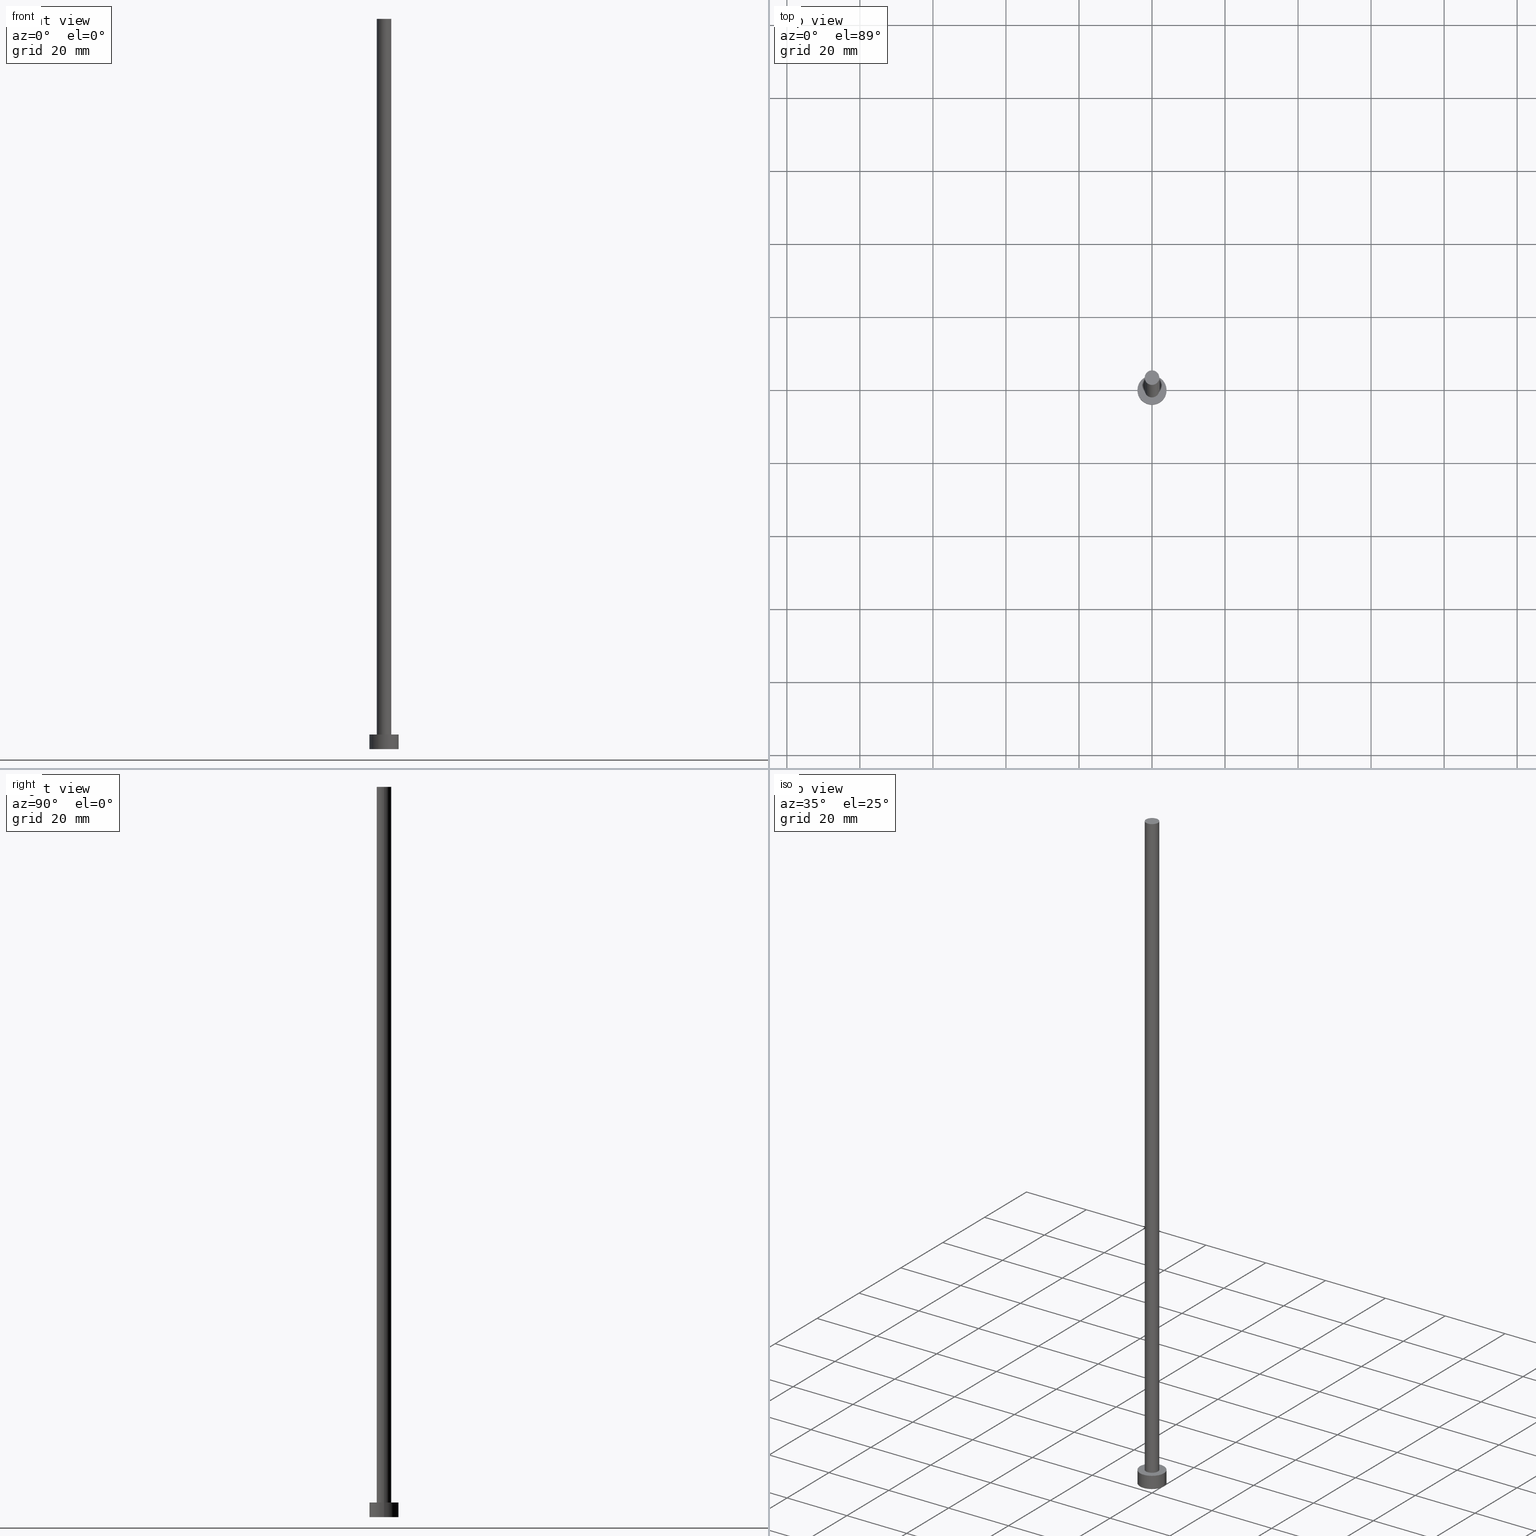
[diagram: canonical four-view strip — front | top / right | iso, engineering-drawing reading convention]
A machine part, canonical four-view strip (front | top / right | iso — engineering-drawing reading convention). The complete STEP part file that produces these views, byte-faithful:
ISO-10303-21;
HEADER;
FILE_DESCRIPTION (( 'STEP AP203' ),
    '1' );
FILE_NAME ('58db.STEP',
    '2023-02-13T16:37:05',
    ( '' ),
    ( '' ),
    'SwSTEP 2.0',
    'SolidWorks 2019',
    '' );
FILE_SCHEMA (( 'CONFIG_CONTROL_DESIGN' ));
ENDSEC;

DATA;
#1 = LOCAL_TIME ( 17, 37, 5.000000000000000000, #58 ) ;
#2 = ORIENTED_EDGE ( 'NONE', *, *, #134, .T. ) ;
#3 = DIRECTION ( 'NONE',  ( -1.000000000000000000, 0.000000000000000000, 0.000000000000000000 ) ) ;
#4 = ADVANCED_FACE ( 'NONE', ( #229 ), #156, .T. ) ;
#5 = AXIS2_PLACEMENT_3D ( 'NONE', #55, #9, #242 ) ;
#6 = DIRECTION ( 'NONE',  ( 1.000000000000000000, 0.000000000000000000, 0.000000000000000000 ) ) ;
#7 = DATE_TIME_ROLE ( 'classification_date' ) ;
#8 = CIRCLE ( 'NONE', #245, 4.000000000000000000 ) ;
#9 = DIRECTION ( 'NONE',  ( 0.000000000000000000, 0.000000000000000000, 1.000000000000000000 ) ) ;
#10 = DIRECTION ( 'NONE',  ( -0.000000000000000000, -0.000000000000000000, -1.000000000000000000 ) ) ;
#11 = ADVANCED_FACE ( 'NONE', ( #74 ), #157, .T. ) ;
#12 =( NAMED_UNIT ( * ) SI_UNIT ( $, .STERADIAN. ) SOLID_ANGLE_UNIT ( ) );
#13 = CARTESIAN_POINT ( 'NONE',  ( 4.000000000000000000, 4.898587196589412829E-16, 4.000000000000000000 ) ) ;
#14 = ADVANCED_FACE ( 'NONE', ( #101 ), #124, .T. ) ;
#15 = CARTESIAN_POINT ( 'NONE',  ( 0.000000000000000000, 0.000000000000000000, 4.000000000000000000 ) ) ;
#16 = CARTESIAN_POINT ( 'NONE',  ( 0.000000000000000000, 0.000000000000000000, 4.000000000000000000 ) ) ;
#17 = CARTESIAN_POINT ( 'NONE',  ( -2.000000000000000000, 0.000000000000000000, 200.0000000000000000 ) ) ;
#18 = PERSON_AND_ORGANIZATION_ROLE ( 'creator' ) ;
#19 = COORDINATED_UNIVERSAL_TIME_OFFSET ( 1, 0, .AHEAD. ) ;
#20 = ORIENTED_EDGE ( 'NONE', *, *, #38, .F. ) ;
#21 = AXIS2_PLACEMENT_3D ( 'NONE', #77, #163, #159 ) ;
#22 = EDGE_LOOP ( 'NONE', ( #72, #98, #238, #177 ) ) ;
#23 = CARTESIAN_POINT ( 'NONE',  ( 2.000000000000000000, 2.449293598294706414E-16, 4.000000000000000000 ) ) ;
#24 = AXIS2_PLACEMENT_3D ( 'NONE', #15, #100, #107 ) ;
#25 = COORDINATED_UNIVERSAL_TIME_OFFSET ( 1, 0, .AHEAD. ) ;
#26 = VECTOR ( 'NONE', #190, 1000.000000000000000 ) ;
#27 = DIRECTION ( 'NONE',  ( 0.000000000000000000, 0.000000000000000000, 1.000000000000000000 ) ) ;
#28 = CARTESIAN_POINT ( 'NONE',  ( 0.000000000000000000, 0.000000000000000000, 200.0000000000000000 ) ) ;
#29 = FACE_BOUND ( 'NONE', #138, .T. ) ;
#30 = PERSON_AND_ORGANIZATION ( #40, #83 ) ;
#31 = CARTESIAN_POINT ( 'NONE',  ( -4.000000000000000000, 0.000000000000000000, 4.000000000000000000 ) ) ;
#32 = CARTESIAN_POINT ( 'NONE',  ( 2.000000000000000000, 2.449293598294706414E-16, 200.0000000000000000 ) ) ;
#33 = EDGE_CURVE ( 'NONE', #179, #254, #69, .T. ) ;
#34 = ORIENTED_EDGE ( 'NONE', *, *, #180, .T. ) ;
#35 = VERTEX_POINT ( 'NONE', #122 ) ;
#36 = DIRECTION ( 'NONE',  ( -0.000000000000000000, -0.000000000000000000, -1.000000000000000000 ) ) ;
#37 = FACE_OUTER_BOUND ( 'NONE', #227, .T. ) ;
#38 = EDGE_CURVE ( 'NONE', #178, #35, #255, .T. ) ;
#39 = AXIS2_PLACEMENT_3D ( 'NONE', #62, #86, #165 ) ;
#40 = PERSON ( 'NEUR�EN�', 'NEUR�EN�', 'NEUR�EN�', ('NEUR�EN�'), ('NEUR�EN�'), ('NEUR�EN�') ) ;
#41 = MECHANICAL_CONTEXT ( 'NONE', #95, 'mechanical' ) ;
#42 = LINE ( 'NONE', #204, #161 ) ;
#43 = AXIS2_PLACEMENT_3D ( 'NONE', #28, #82, #135 ) ;
#44 = DIRECTION ( 'NONE',  ( 0.000000000000000000, 0.000000000000000000, 1.000000000000000000 ) ) ;
#45 = DATE_AND_TIME ( #225, #121 ) ;
#46 = CC_DESIGN_APPROVAL ( #182, ( #118 ) ) ;
#47 = PERSON_AND_ORGANIZATION ( #40, #83 ) ;
#48 = AXIS2_PLACEMENT_3D ( 'NONE', #231, #36, #3 ) ;
#49 = EDGE_CURVE ( 'NONE', #193, #211, #57, .T. ) ;
#50 = ORIENTED_EDGE ( 'NONE', *, *, #38, .T. ) ;
#51 = ORIENTED_EDGE ( 'NONE', *, *, #49, .F. ) ;
#52 = EDGE_CURVE ( 'NONE', #254, #179, #216, .T. ) ;
#53 = CARTESIAN_POINT ( 'NONE',  ( 0.000000000000000000, 0.000000000000000000, 4.000000000000000000 ) ) ;
#54 = PERSON_AND_ORGANIZATION ( #40, #83 ) ;
#55 = CARTESIAN_POINT ( 'NONE',  ( 0.000000000000000000, 0.000000000000000000, 200.0000000000000000 ) ) ;
#56 = CC_DESIGN_DATE_AND_TIME_ASSIGNMENT ( #170, #196, ( #175 ) ) ;
#57 = CIRCLE ( 'NONE', #21, 4.000000000000000000 ) ;
#58 = COORDINATED_UNIVERSAL_TIME_OFFSET ( 1, 0, .AHEAD. ) ;
#59 = LOCAL_TIME ( 17, 37, 5.000000000000000000, #19 ) ;
#60 = FACE_OUTER_BOUND ( 'NONE', #80, .T. ) ;
#61 = PERSON_AND_ORGANIZATION_ROLE ( 'classification_officer' ) ;
#62 = CARTESIAN_POINT ( 'NONE',  ( 0.000000000000000000, 0.000000000000000000, 0.000000000000000000 ) ) ;
#63 = LOCAL_TIME ( 17, 37, 5.000000000000000000, #143 ) ;
#64 = CARTESIAN_POINT ( 'NONE',  ( 0.000000000000000000, 0.000000000000000000, 4.000000000000000000 ) ) ;
#65 = DIRECTION ( 'NONE',  ( -0.000000000000000000, -0.000000000000000000, -1.000000000000000000 ) ) ;
#66 = PERSON_AND_ORGANIZATION ( #40, #83 ) ;
#67 = CARTESIAN_POINT ( 'NONE',  ( 0.000000000000000000, 0.000000000000000000, 0.000000000000000000 ) ) ;
#68 = ORIENTED_EDGE ( 'NONE', *, *, #33, .T. ) ;
#69 = CIRCLE ( 'NONE', #5, 2.000000000000000000 ) ;
#70 = ORIENTED_EDGE ( 'NONE', *, *, #151, .F. ) ;
#71 = AXIS2_PLACEMENT_3D ( 'NONE', #16, #44, #130 ) ;
#72 = ORIENTED_EDGE ( 'NONE', *, *, #134, .F. ) ;
#73 = ADVANCED_FACE ( 'NONE', ( #106 ), #183, .T. ) ;
#74 = FACE_OUTER_BOUND ( 'NONE', #96, .T. ) ;
#75 = AXIS2_PLACEMENT_3D ( 'NONE', #236, #27, #186 ) ;
#76 = DATE_AND_TIME ( #81, #1 ) ;
#77 = CARTESIAN_POINT ( 'NONE',  ( 0.000000000000000000, 0.000000000000000000, 0.000000000000000000 ) ) ;
#78 = APPROVAL_PERSON_ORGANIZATION ( #66, #104, #252 ) ;
#79 = MANIFOLD_SOLID_BREP ( 'P�idat vysunut�m3', #125 ) ;
#80 = EDGE_LOOP ( 'NONE', ( #34, #136 ) ) ;
#81 = CALENDAR_DATE ( 2023, 13, 2 ) ;
#82 = DIRECTION ( 'NONE',  ( 0.000000000000000000, 0.000000000000000000, 1.000000000000000000 ) ) ;
#83 = ORGANIZATION ( 'NEUR�EN�', 'NEUR�EN�', '' ) ;
#84 = DIRECTION ( 'NONE',  ( -1.000000000000000000, 0.000000000000000000, 0.000000000000000000 ) ) ;
#85 = APPROVAL ( #222, 'NEUR�EN�' ) ;
#86 = DIRECTION ( 'NONE',  ( 0.000000000000000000, 0.000000000000000000, 1.000000000000000000 ) ) ;
#87 = CYLINDRICAL_SURFACE ( 'NONE', #93, 2.000000000000000000 ) ;
#88 = CALENDAR_DATE ( 2023, 13, 2 ) ;
#89 = DIRECTION ( 'NONE',  ( -0.000000000000000000, -0.000000000000000000, -1.000000000000000000 ) ) ;
#90 =( NAMED_UNIT ( * ) PLANE_ANGLE_UNIT ( ) SI_UNIT ( $, .RADIAN. ) );
#91 = PERSON_AND_ORGANIZATION ( #40, #83 ) ;
#92 = CC_DESIGN_PERSON_AND_ORGANIZATION_ASSIGNMENT ( #91, #249, ( #150 ) ) ;
#93 = AXIS2_PLACEMENT_3D ( 'NONE', #215, #89, #127 ) ;
#94 = ORIENTED_EDGE ( 'NONE', *, *, #52, .F. ) ;
#95 = APPLICATION_CONTEXT ( 'configuration controlled 3d designs of mechanical parts and assemblies' ) ;
#96 = EDGE_LOOP ( 'NONE', ( #198, #232, #50, #119 ) ) ;
#97 = AXIS2_PLACEMENT_3D ( 'NONE', #164, #243, #146 ) ;
#98 = ORIENTED_EDGE ( 'NONE', *, *, #180, .F. ) ;
#99 = ORIENTED_EDGE ( 'NONE', *, *, #49, .T. ) ;
#100 = DIRECTION ( 'NONE',  ( 0.000000000000000000, 0.000000000000000000, 1.000000000000000000 ) ) ;
#101 = FACE_OUTER_BOUND ( 'NONE', #22, .T. ) ;
#102 = SHAPE_DEFINITION_REPRESENTATION ( #209, #169 ) ;
#103 = APPROVAL_ROLE ( '' ) ;
#104 = APPROVAL ( #219, 'NEUR�EN�' ) ;
#105 = CIRCLE ( 'NONE', #24, 4.000000000000000000 ) ;
#106 = FACE_OUTER_BOUND ( 'NONE', #160, .T. ) ;
#107 = DIRECTION ( 'NONE',  ( 1.000000000000000000, 0.000000000000000000, 0.000000000000000000 ) ) ;
#108 = CC_DESIGN_DATE_AND_TIME_ASSIGNMENT ( #76, #7, ( #118 ) ) ;
#109 = PERSON_AND_ORGANIZATION_ROLE ( 'creator' ) ;
#110 = LINE ( 'NONE', #247, #218 ) ;
#111 = DIRECTION ( 'NONE',  ( 1.000000000000000000, 0.000000000000000000, 0.000000000000000000 ) ) ;
#112 =( LENGTH_UNIT ( ) NAMED_UNIT ( * ) SI_UNIT ( .MILLI., .METRE. ) );
#113 = VECTOR ( 'NONE', #253, 1000.000000000000000 ) ;
#114 = CIRCLE ( 'NONE', #71, 2.000000000000000000 ) ;
#115 = ORIENTED_EDGE ( 'NONE', *, *, #240, .F. ) ;
#116 = CIRCLE ( 'NONE', #184, 4.000000000000000000 ) ;
#117 = ORIENTED_EDGE ( 'NONE', *, *, #166, .F. ) ;
#118 = SECURITY_CLASSIFICATION ( '', '', #133 ) ;
#119 = ORIENTED_EDGE ( 'NONE', *, *, #251, .F. ) ;
#120 = DIRECTION ( 'NONE',  ( -0.000000000000000000, -0.000000000000000000, -1.000000000000000000 ) ) ;
#121 = LOCAL_TIME ( 17, 37, 5.000000000000000000, #148 ) ;
#122 = CARTESIAN_POINT ( 'NONE',  ( -2.000000000000000000, 0.000000000000000000, 4.000000000000000000 ) ) ;
#123 = DIRECTION ( 'NONE',  ( 0.000000000000000000, 0.000000000000000000, 1.000000000000000000 ) ) ;
#124 = CYLINDRICAL_SURFACE ( 'NONE', #188, 4.000000000000000000 ) ;
#125 = CLOSED_SHELL ( 'NONE', ( #11, #4, #14, #158, #194, #213, #73 ) ) ;
#126 = PLANE ( 'NONE',  #221 ) ;
#127 = DIRECTION ( 'NONE',  ( -1.000000000000000000, 0.000000000000000000, 0.000000000000000000 ) ) ;
#128 = PRODUCT_RELATED_PRODUCT_CATEGORY ( 'detail', '', ( #230 ) ) ;
#129 = DIRECTION ( 'NONE',  ( -0.000000000000000000, -0.000000000000000000, -1.000000000000000000 ) ) ;
#130 = DIRECTION ( 'NONE',  ( 1.000000000000000000, 0.000000000000000000, 0.000000000000000000 ) ) ;
#131 = APPROVAL_DATE_TIME ( #45, #104 ) ;
#132 = APPROVAL_ROLE ( '' ) ;
#133 = SECURITY_CLASSIFICATION_LEVEL ( 'unclassified' ) ;
#134 = EDGE_CURVE ( 'NONE', #154, #193, #228, .T. ) ;
#135 = DIRECTION ( 'NONE',  ( 1.000000000000000000, 0.000000000000000000, -0.000000000000000000 ) ) ;
#136 = ORIENTED_EDGE ( 'NONE', *, *, #166, .T. ) ;
#137 = ORIENTED_EDGE ( 'NONE', *, *, #235, .F. ) ;
#138 = EDGE_LOOP ( 'NONE', ( #115, #20 ) ) ;
#139 = CARTESIAN_POINT ( 'NONE',  ( 4.000000000000000000, 4.898587196589412829E-16, 0.000000000000000000 ) ) ;
#140 = EDGE_LOOP ( 'NONE', ( #117, #2, #99, #137 ) ) ;
#141 = APPROVAL_STATUS ( 'not_yet_approved' ) ;
#142 = CC_DESIGN_PERSON_AND_ORGANIZATION_ASSIGNMENT ( #191, #18, ( #150 ) ) ;
#143 = COORDINATED_UNIVERSAL_TIME_OFFSET ( 1, 0, .AHEAD. ) ;
#144 = CARTESIAN_POINT ( 'NONE',  ( 0.000000000000000000, 0.000000000000000000, 4.000000000000000000 ) ) ;
#145 = CARTESIAN_POINT ( 'NONE',  ( -4.000000000000000000, 0.000000000000000000, 0.000000000000000000 ) ) ;
#146 = DIRECTION ( 'NONE',  ( 1.000000000000000000, 0.000000000000000000, 0.000000000000000000 ) ) ;
#147 = LINE ( 'NONE', #32, #26 ) ;
#148 = COORDINATED_UNIVERSAL_TIME_OFFSET ( 1, 0, .AHEAD. ) ;
#149 = APPLICATION_PROTOCOL_DEFINITION ( 'international standard', 'config_control_design', 1994, #246 ) ;
#150 = PRODUCT_DEFINITION_FORMATION_WITH_SPECIFIED_SOURCE ( 'LIBOVOLN�', '', #230, .NOT_KNOWN. ) ;
#151 = EDGE_CURVE ( 'NONE', #211, #193, #116, .T. ) ;
#152 = ORIENTED_EDGE ( 'NONE', *, *, #251, .T. ) ;
#153 = UNCERTAINTY_MEASURE_WITH_UNIT (LENGTH_MEASURE( 1.000000000000000082E-05 ), #112, 'distance_accuracy_value', 'NONE');
#154 = VERTEX_POINT ( 'NONE', #13 ) ;
#155 = EDGE_LOOP ( 'NONE', ( #195, #94, #152, #174 ) ) ;
#156 = CYLINDRICAL_SURFACE ( 'NONE', #48, 4.000000000000000000 ) ;
#157 = CYLINDRICAL_SURFACE ( 'NONE', #199, 2.000000000000000000 ) ;
#158 = ADVANCED_FACE ( 'NONE', ( #29, #60 ), #126, .T. ) ;
#159 = DIRECTION ( 'NONE',  ( 1.000000000000000000, 0.000000000000000000, 0.000000000000000000 ) ) ;
#160 = EDGE_LOOP ( 'NONE', ( #208, #68 ) ) ;
#161 = VECTOR ( 'NONE', #129, 1000.000000000000000 ) ;
#162 = CARTESIAN_POINT ( 'NONE',  ( 2.000000000000000000, 2.449293598294706414E-16, 200.0000000000000000 ) ) ;
#163 = DIRECTION ( 'NONE',  ( 0.000000000000000000, 0.000000000000000000, 1.000000000000000000 ) ) ;
#164 = CARTESIAN_POINT ( 'NONE',  ( 0.000000000000000000, 0.000000000000000000, 0.000000000000000000 ) ) ;
#165 = DIRECTION ( 'NONE',  ( 1.000000000000000000, 0.000000000000000000, -0.000000000000000000 ) ) ;
#166 = EDGE_CURVE ( 'NONE', #154, #226, #105, .T. ) ;
#167 = APPROVAL_PERSON_ORGANIZATION ( #47, #85, #132 ) ;
#168 = DIRECTION ( 'NONE',  ( 0.000000000000000000, 0.000000000000000000, 1.000000000000000000 ) ) ;
#169 = ADVANCED_BREP_SHAPE_REPRESENTATION ( '58db', ( #79, #97 ), #205 ) ;
#170 = DATE_AND_TIME ( #248, #59 ) ;
#171 = CC_DESIGN_PERSON_AND_ORGANIZATION_ASSIGNMENT ( #30, #109, ( #175 ) ) ;
#172 = CC_DESIGN_APPROVAL ( #85, ( #175 ) ) ;
#173 = CARTESIAN_POINT ( 'NONE',  ( 4.000000000000000000, 4.898587196589412829E-16, 4.000000000000000000 ) ) ;
#174 = ORIENTED_EDGE ( 'NONE', *, *, #240, .T. ) ;
#175 = PRODUCT_DEFINITION ( 'NEZN�M�', '', #150, #207 ) ;
#176 = AXIS2_PLACEMENT_3D ( 'NONE', #200, #123, #6 ) ;
#177 = ORIENTED_EDGE ( 'NONE', *, *, #151, .T. ) ;
#178 = VERTEX_POINT ( 'NONE', #23 ) ;
#179 = VERTEX_POINT ( 'NONE', #162 ) ;
#180 = EDGE_CURVE ( 'NONE', #226, #154, #8, .T. ) ;
#181 = DIRECTION ( 'NONE',  ( -1.000000000000000000, 0.000000000000000000, 0.000000000000000000 ) ) ;
#182 = APPROVAL ( #141, 'NEUR�EN�' ) ;
#183 = PLANE ( 'NONE',  #43 ) ;
#184 = AXIS2_PLACEMENT_3D ( 'NONE', #67, #203, #111 ) ;
#185 = CALENDAR_DATE ( 2023, 13, 2 ) ;
#186 = DIRECTION ( 'NONE',  ( 1.000000000000000000, 0.000000000000000000, 0.000000000000000000 ) ) ;
#187 = PERSON_AND_ORGANIZATION ( #40, #83 ) ;
#188 = AXIS2_PLACEMENT_3D ( 'NONE', #144, #120, #181 ) ;
#189 = DIRECTION ( 'NONE',  ( 0.000000000000000000, 0.000000000000000000, 1.000000000000000000 ) ) ;
#190 = DIRECTION ( 'NONE',  ( -0.000000000000000000, -0.000000000000000000, -1.000000000000000000 ) ) ;
#191 = PERSON_AND_ORGANIZATION ( #40, #83 ) ;
#192 = APPROVAL_PERSON_ORGANIZATION ( #54, #182, #103 ) ;
#193 = VERTEX_POINT ( 'NONE', #139 ) ;
#194 = ADVANCED_FACE ( 'NONE', ( #37 ), #197, .F. ) ;
#195 = ORIENTED_EDGE ( 'NONE', *, *, #201, .F. ) ;
#196 = DATE_TIME_ROLE ( 'creation_date' ) ;
#197 = PLANE ( 'NONE',  #39 ) ;
#198 = ORIENTED_EDGE ( 'NONE', *, *, #33, .F. ) ;
#199 = AXIS2_PLACEMENT_3D ( 'NONE', #237, #10, #84 ) ;
#200 = CARTESIAN_POINT ( 'NONE',  ( 0.000000000000000000, 0.000000000000000000, 4.000000000000000000 ) ) ;
#201 = EDGE_CURVE ( 'NONE', #179, #178, #147, .T. ) ;
#202 = APPROVAL_DATE_TIME ( #214, #85 ) ;
#203 = DIRECTION ( 'NONE',  ( 0.000000000000000000, 0.000000000000000000, 1.000000000000000000 ) ) ;
#204 = CARTESIAN_POINT ( 'NONE',  ( -2.000000000000000000, 0.000000000000000000, 200.0000000000000000 ) ) ;
#205 =( GEOMETRIC_REPRESENTATION_CONTEXT ( 3 ) GLOBAL_UNCERTAINTY_ASSIGNED_CONTEXT ( ( #153 ) ) GLOBAL_UNIT_ASSIGNED_CONTEXT ( ( #112, #90, #12 ) ) REPRESENTATION_CONTEXT ( 'NONE', 'WORKASPACE' ) );
#206 = PERSON_AND_ORGANIZATION ( #40, #83 ) ;
#207 = DESIGN_CONTEXT ( 'detailed design', #246, 'design' ) ;
#208 = ORIENTED_EDGE ( 'NONE', *, *, #52, .T. ) ;
#209 = PRODUCT_DEFINITION_SHAPE ( 'NONE', 'NONE',  #175 ) ;
#210 = CC_DESIGN_PERSON_AND_ORGANIZATION_ASSIGNMENT ( #187, #244, ( #230 ) ) ;
#211 = VERTEX_POINT ( 'NONE', #145 ) ;
#212 = DIRECTION ( 'NONE',  ( 1.000000000000000000, 0.000000000000000000, -0.000000000000000000 ) ) ;
#213 = ADVANCED_FACE ( 'NONE', ( #220 ), #87, .T. ) ;
#214 = DATE_AND_TIME ( #88, #63 ) ;
#215 = CARTESIAN_POINT ( 'NONE',  ( 0.000000000000000000, 0.000000000000000000, 200.0000000000000000 ) ) ;
#216 = CIRCLE ( 'NONE', #75, 2.000000000000000000 ) ;
#217 = APPLICATION_PROTOCOL_DEFINITION ( 'international standard', 'config_control_design', 1994, #95 ) ;
#218 = VECTOR ( 'NONE', #65, 1000.000000000000000 ) ;
#219 = APPROVAL_STATUS ( 'not_yet_approved' ) ;
#220 = FACE_OUTER_BOUND ( 'NONE', #155, .T. ) ;
#221 = AXIS2_PLACEMENT_3D ( 'NONE', #64, #189, #212 ) ;
#222 = APPROVAL_STATUS ( 'not_yet_approved' ) ;
#223 = CC_DESIGN_SECURITY_CLASSIFICATION ( #118, ( #150 ) ) ;
#224 = CC_DESIGN_PERSON_AND_ORGANIZATION_ASSIGNMENT ( #206, #61, ( #118 ) ) ;
#225 = CALENDAR_DATE ( 2023, 13, 2 ) ;
#226 = VERTEX_POINT ( 'NONE', #31 ) ;
#227 = EDGE_LOOP ( 'NONE', ( #70, #51 ) ) ;
#228 = LINE ( 'NONE', #173, #113 ) ;
#229 = FACE_OUTER_BOUND ( 'NONE', #140, .T. ) ;
#230 = PRODUCT ( '58db', '58db', '', ( #41 ) ) ;
#231 = CARTESIAN_POINT ( 'NONE',  ( 0.000000000000000000, 0.000000000000000000, 4.000000000000000000 ) ) ;
#232 = ORIENTED_EDGE ( 'NONE', *, *, #201, .T. ) ;
#233 = DATE_AND_TIME ( #185, #250 ) ;
#234 = CC_DESIGN_APPROVAL ( #104, ( #150 ) ) ;
#235 = EDGE_CURVE ( 'NONE', #226, #211, #110, .T. ) ;
#236 = CARTESIAN_POINT ( 'NONE',  ( 0.000000000000000000, 0.000000000000000000, 200.0000000000000000 ) ) ;
#237 = CARTESIAN_POINT ( 'NONE',  ( 0.000000000000000000, 0.000000000000000000, 200.0000000000000000 ) ) ;
#238 = ORIENTED_EDGE ( 'NONE', *, *, #235, .T. ) ;
#239 = APPROVAL_DATE_TIME ( #233, #182 ) ;
#240 = EDGE_CURVE ( 'NONE', #35, #178, #114, .T. ) ;
#241 = DIRECTION ( 'NONE',  ( 1.000000000000000000, 0.000000000000000000, 0.000000000000000000 ) ) ;
#242 = DIRECTION ( 'NONE',  ( 1.000000000000000000, 0.000000000000000000, 0.000000000000000000 ) ) ;
#243 = DIRECTION ( 'NONE',  ( 0.000000000000000000, 0.000000000000000000, 1.000000000000000000 ) ) ;
#244 = PERSON_AND_ORGANIZATION_ROLE ( 'design_owner' ) ;
#245 = AXIS2_PLACEMENT_3D ( 'NONE', #53, #168, #241 ) ;
#246 = APPLICATION_CONTEXT ( 'configuration controlled 3d designs of mechanical parts and assemblies' ) ;
#247 = CARTESIAN_POINT ( 'NONE',  ( -4.000000000000000000, 0.000000000000000000, 4.000000000000000000 ) ) ;
#248 = CALENDAR_DATE ( 2023, 13, 2 ) ;
#249 = PERSON_AND_ORGANIZATION_ROLE ( 'design_supplier' ) ;
#250 = LOCAL_TIME ( 17, 37, 5.000000000000000000, #25 ) ;
#251 = EDGE_CURVE ( 'NONE', #254, #35, #42, .T. ) ;
#252 = APPROVAL_ROLE ( '' ) ;
#253 = DIRECTION ( 'NONE',  ( -0.000000000000000000, -0.000000000000000000, -1.000000000000000000 ) ) ;
#254 = VERTEX_POINT ( 'NONE', #17 ) ;
#255 = CIRCLE ( 'NONE', #176, 2.000000000000000000 ) ;
ENDSEC;
END-ISO-10303-21;
